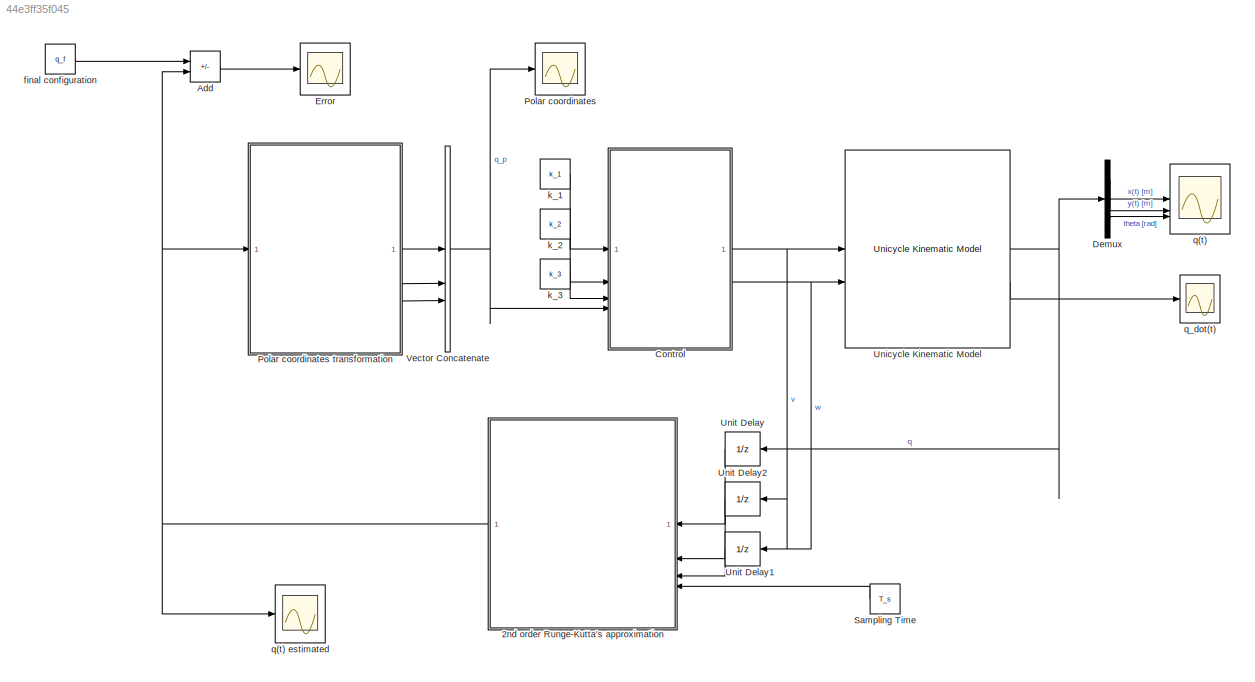
MODEL slx_44e3ff35f045
KIND model
CONFIG AbsTol = auto
CONFIG EnableMultiTasking = off
CONFIG FixedStep = auto
CONFIG MaxStep = auto
CONFIG MinStep = auto
CONFIG RelTol = 1e-3
CONFIG SampleTimeConstraint = Unconstrained
CONFIG SolverName = VariableStepAuto
CONFIG StartTime = 0.0
CONFIG StopTime = 10
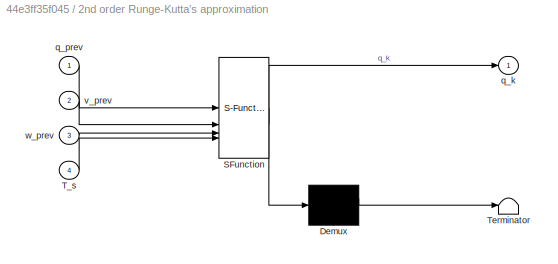
BLOCK [SubSystem] 2nd order Runge-Kutta's approximation
  ErrorFcn = Stateflow.Translate.translate
  NameLocation = top
  PermitHierarchicalResolution = ExplicitOnly
  SFBlockType = MATLAB Function
  TreatAsAtomicUnit = on
BLOCK [Demux] 2nd order Runge-Kutta's approximation/ Demux 
  Outputs = 1
BLOCK [S-Function] 2nd order Runge-Kutta's approximation/ SFunction 
  EnableBusSupport = on
  FunctionName = sf_sfun
  PortCounts = [4 2]
  SFcnIsStateOwnerBlock = off
  SFunctionDeploymentMode = off
  Tag = Stateflow S-Function 3
BLOCK [Terminator] 2nd order Runge-Kutta's approximation/ Terminator 
BLOCK [Inport] 2nd order Runge-Kutta's approximation/T_s
  Port = 4
BLOCK [Outport] 2nd order Runge-Kutta's approximation/q_k
BLOCK [Inport] 2nd order Runge-Kutta's approximation/q_prev
BLOCK [Inport] 2nd order Runge-Kutta's approximation/v_prev
  Port = 2
BLOCK [Inport] 2nd order Runge-Kutta's approximation/w_prev
  Port = 3
BLOCK [Sum] Add
  IconShape = rectangular
  Inputs = +-
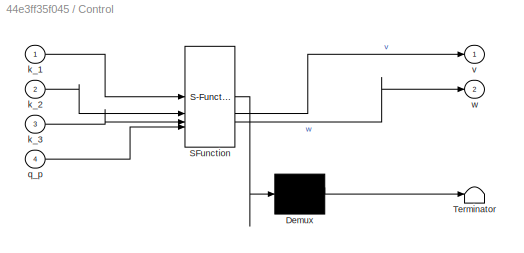
BLOCK [SubSystem] Control
  ErrorFcn = Stateflow.Translate.translate
  PermitHierarchicalResolution = ExplicitOnly
  SFBlockType = MATLAB Function
  TreatAsAtomicUnit = on
BLOCK [Demux] Control/ Demux 
  Outputs = 1
BLOCK [S-Function] Control/ SFunction 
  EnableBusSupport = on
  FunctionName = sf_sfun
  PortCounts = [4 3]
  SFcnIsStateOwnerBlock = off
  SFunctionDeploymentMode = off
  Tag = Stateflow S-Function 1
BLOCK [Terminator] Control/ Terminator 
BLOCK [Inport] Control/k_1
BLOCK [Inport] Control/k_2
  Port = 2
BLOCK [Inport] Control/k_3
  Port = 3
BLOCK [Inport] Control/q_p
  Port = 4
BLOCK [Outport] Control/v
BLOCK [Outport] Control/w
  Port = 2
BLOCK [Demux] Demux
  Outputs = 3
BLOCK [Scope] Error
  Floating = off
  NumInputPorts = 1
  ScopeSpecificationString = Simulink.scopes.TimeScopeBlockCfg('CurrentConfiguration', extmgr.ConfigurationSet(extmgr.Configuration('Core','General UI',true),extmgr.Configuration('Core','Source UI',true),extmgr.Configuration('Sources','WiredSimulink',true,'DataLoggingVariableName','ScopeData2'),extmgr.Configuration('Visuals','Time Domain',true,'SerializedDisplays',{struct('MinYLimReal','-10.97225','MaxYLimReal','6.54896','YLa...<+1915ch>
BLOCK [Scope] Polar coordinates
  Floating = off
  NumInputPorts = 1
  ScopeSpecificationString = Simulink.scopes.TimeScopeBlockCfg('CurrentConfiguration', extmgr.ConfigurationSet(extmgr.Configuration('Core','General UI',true),extmgr.Configuration('Core','Source UI',true),extmgr.Configuration('Sources','WiredSimulink',true,'DataLoggingVariableName','ScopeData4'),extmgr.Configuration('Visuals','Time Domain',true,'SerializedDisplays',{struct('MinYLimReal','-3.85709','MaxYLimReal','10.97221','YLa...<+1473ch>
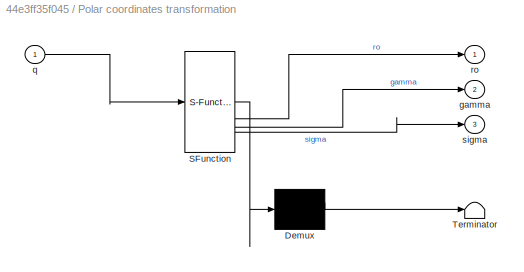
BLOCK [SubSystem] Polar coordinates transformation
  ErrorFcn = Stateflow.Translate.translate
  PermitHierarchicalResolution = ExplicitOnly
  SFBlockType = MATLAB Function
  TreatAsAtomicUnit = on
BLOCK [Demux] Polar coordinates transformation/ Demux 
  Outputs = 1
BLOCK [S-Function] Polar coordinates transformation/ SFunction 
  EnableBusSupport = on
  FunctionName = sf_sfun
  PortCounts = [1 4]
  SFcnIsStateOwnerBlock = off
  SFunctionDeploymentMode = off
  Tag = Stateflow S-Function 2
BLOCK [Terminator] Polar coordinates transformation/ Terminator 
BLOCK [Outport] Polar coordinates transformation/gamma
  Port = 2
BLOCK [Inport] Polar coordinates transformation/q
BLOCK [Outport] Polar coordinates transformation/ro
BLOCK [Outport] Polar coordinates transformation/sigma
  Port = 3
BLOCK [Constant] Sampling Time
  NameLocation = top
  Value = T_s
BLOCK [Reference] Unicycle Kinematic Model  REF=robotmobilelib/Unicycle Kinematic Model
  SourceBlock = robotmobilelib/Unicycle Kinematic Model
  SourceType = Unicycle Kinematic Model
BLOCK [UnitDelay] Unit Delay
  HasFrameUpgradeWarning = on
  NameLocation = top
  SampleTime = T_s
BLOCK [UnitDelay] Unit Delay1
  HasFrameUpgradeWarning = on
  NameLocation = top
  SampleTime = T_s
BLOCK [UnitDelay] Unit Delay2
  HasFrameUpgradeWarning = on
  NameLocation = top
  SampleTime = T_s
BLOCK [Concatenate] Vector Concatenate
  NumInputs = 3
BLOCK [Constant] final configuration
  Value = q_f
BLOCK [Constant] k_1
  Value = k_1
BLOCK [Constant] k_2
  Value = k_2
BLOCK [Constant] k_3
  Value = k_3
BLOCK [Scope] q(t)
  Floating = off
  NumInputPorts = 3
  ScopeSpecificationString = Simulink.scopes.TimeScopeBlockCfg('CurrentConfiguration', extmgr.ConfigurationSet(extmgr.Configuration('Core','General UI',true,'FigureColor',[1 1 1]),extmgr.Configuration('Core','Source UI',true),extmgr.Configuration('Sources','WiredSimulink',true,'DataLoggingVariableName','ScopeData1'),extmgr.Configuration('Visuals','Time Domain',true,'TimeAxisLabels','All','SerializedDisplays',{struct('MinYLimR...<+3175ch>
BLOCK [Scope] q(t) estimated
  Floating = off
  NumInputPorts = 1
  ScopeSpecificationString = Simulink.scopes.TimeScopeBlockCfg('CurrentConfiguration', extmgr.ConfigurationSet(extmgr.Configuration('Core','General UI',true),extmgr.Configuration('Core','Source UI',true),extmgr.Configuration('Sources','WiredSimulink',true,'DataLoggingVariableName','ScopeData3'),extmgr.Configuration('Visuals','Time Domain',true,'SerializedDisplays',{struct('MinYLimReal','-2.26285','MaxYLimReal','10.36372','YLa...<+1597ch>
BLOCK [Scope] q_dot(t)
  Floating = off
  NumInputPorts = 1
  ScopeSpecificationString = Simulink.scopes.TimeScopeBlockCfg('CurrentConfiguration', extmgr.ConfigurationSet(extmgr.Configuration('Core','General UI',true),extmgr.Configuration('Core','Source UI',true),extmgr.Configuration('Sources','WiredSimulink',true),extmgr.Configuration('Visuals','Time Domain',true,'SerializedDisplays',{struct('MinYLimReal','-155.72444','MaxYLimReal','192.54478','YLabelReal','','MinYLimMag',' 0.00000',...<+1513ch>
NET 2nd order Runge-Kutta's approximation:1 -> Add:2, Polar coordinates transformation:1, q(t) estimated:1
LINE Add:1 -> Error:1
NET Control:1 -> Unicycle Kinematic Model:1, Unit Delay2:1
NET Control:2 -> Unicycle Kinematic Model:2, Unit Delay1:1
LINE Demux:1 -> q(t):1
LINE Demux:2 -> q(t):2
LINE Demux:3 -> q(t):3
LINE Polar coordinates transformation:1 -> Vector Concatenate:1
LINE Polar coordinates transformation:2 -> Vector Concatenate:2
LINE Polar coordinates transformation:3 -> Vector Concatenate:3
LINE Sampling Time:1 -> 2nd order Runge-Kutta's approximation:4
NET Unicycle Kinematic Model:1 -> Demux:1, Unit Delay:1
LINE Unicycle Kinematic Model:2 -> q_dot(t):1
LINE Unit Delay1:1 -> 2nd order Runge-Kutta's approximation:3
LINE Unit Delay2:1 -> 2nd order Runge-Kutta's approximation:2
LINE Unit Delay:1 -> 2nd order Runge-Kutta's approximation:1
NET Vector Concatenate:1 -> Control:4, Polar coordinates:1
LINE final configuration:1 -> Add:1
LINE k_1:1 -> Control:1
LINE k_2:1 -> Control:2
LINE k_3:1 -> Control:3
note: NET lines group one-source signal fan-out (src -> all destinations, sorted); 1:1 wires keep LINE
CHART Control states=1 transitions=1
  STATE_LABEL 'eML_blk_kernel()'
  STATE_LABEL 'SCRIPT:\nfunction [v,w] = fcn(k_1,k_2,k_3,q_p)\n\nv = k_1*q_p(1,1)*cos(q_p(2,1)); %k_1*ro*cos(gamma)\nw = k_2*q_p(2,1) + k_1*sin(q_p(2,1))*cos(q_p(2,1))*(1 + k_3*q_p(3,1)/q_p(2,1));\n%k_2*gamma + k_1*sin(gamma)*cos(gamma)*(1 + k_3*sigma/gamma)\n\nend\n'
CHART Polar coordinates transformation states=1 transitions=1
  STATE_LABEL 'eML_blk_kernel()'
  STATE_LABEL 'SCRIPT:\nfunction [ro,gamma,sigma] = fcn(q)\n\nro = sqrt(q(1,1)^2 + q(2,1)^2); % sqrt(x^2+y^2)\ngamma = atan2(q(2,1),q(1,1)) - q(3,1) + pi; % atan2(y,x)-theta-pi\nsigma = gamma + q(3,1); % gamma + theta\n\nend\n'
CHART 2nd order Runge-Kutta's approximation states=1 transitions=1
  STATE_LABEL 'eML_blk_kernel()'
  STATE_LABEL "SCRIPT:\nfunction q_k   = fcn(q_prev,v_prev,w_prev,T_s)\n\nx_k = q_prev(1,1) + v_prev*T_s*cos(q_prev(3,1) + 1/2*w_prev*T_s);\n%x_prev + v_prev*T_s*cos(theta_prev + 1/2*w_prev*T_s)\ny_k = q_prev(2,1) + v_prev*T_s*sin(q_prev(3,1) + 1/2*w_prev*T_s);\n%y_prev + v_prev*T_s*sin(theta_prev + 1/2*w_prev*T_s)\ntheta_k = q_prev(3,1) + w_prev*T_s; %theta_k = theta_prev + w_prev*T_s;\n\nq_k = [x_k,y_k,theta_k]';\n\nend\n"
CHART  states=0 transitions=0
CHART  states=0 transitions=0
CHART  states=0 transitions=0
